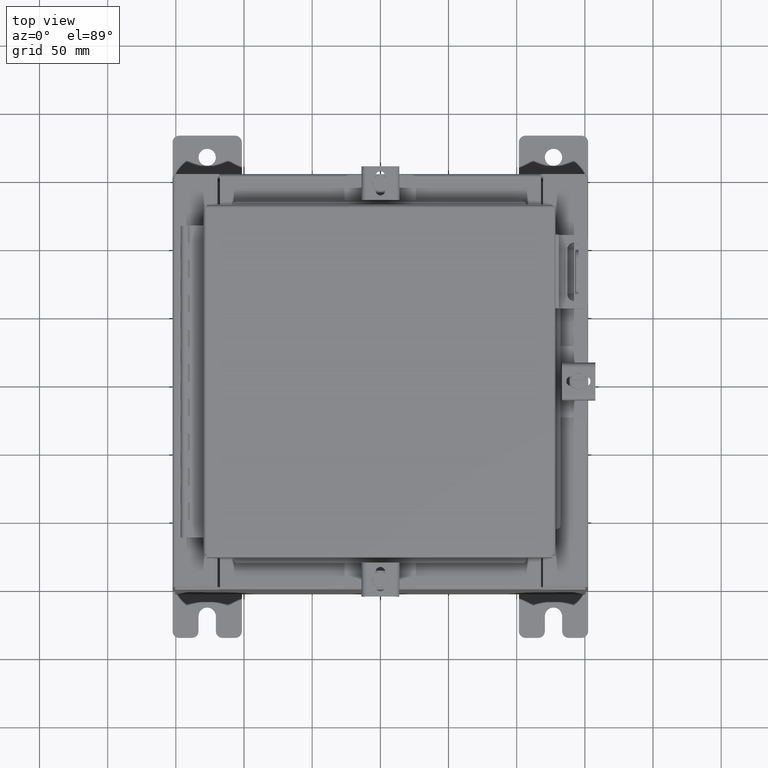
[diagram: clean part render]
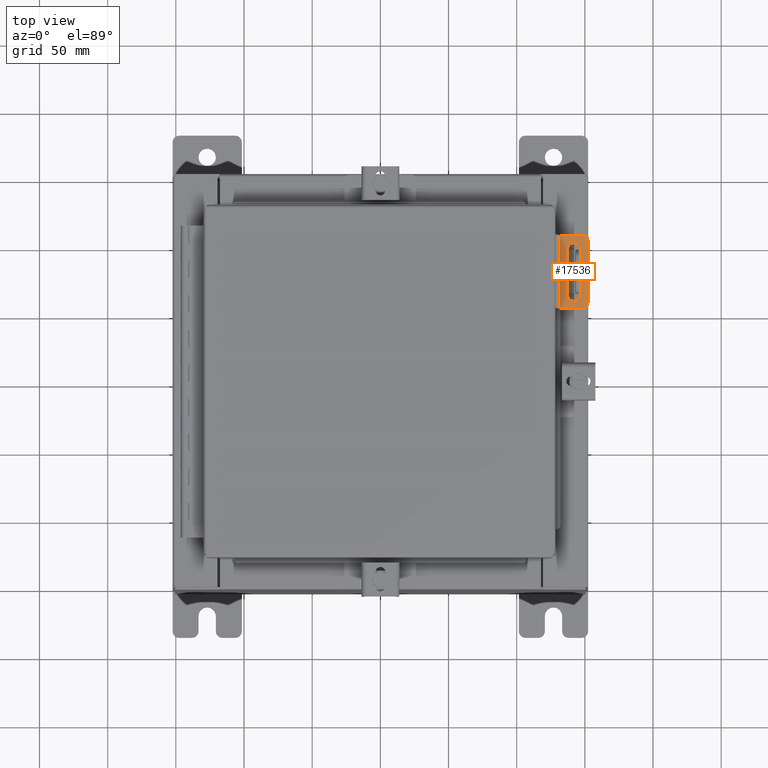
[diagram: same view with one face highlighted and labeled with its STEP entity id]
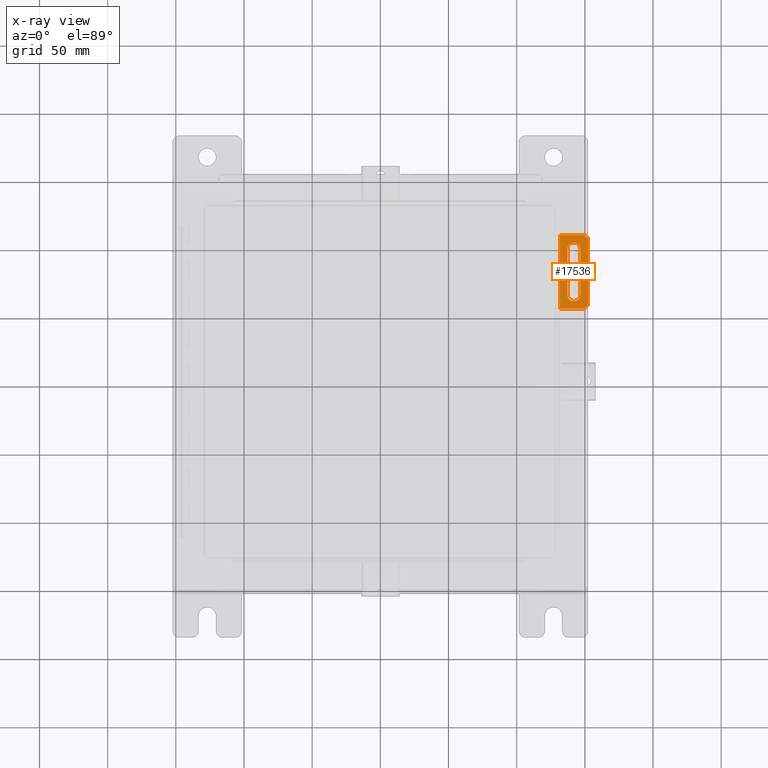
[diagram: x-ray of the same camera — body ghosted, the highlighted face saturated]
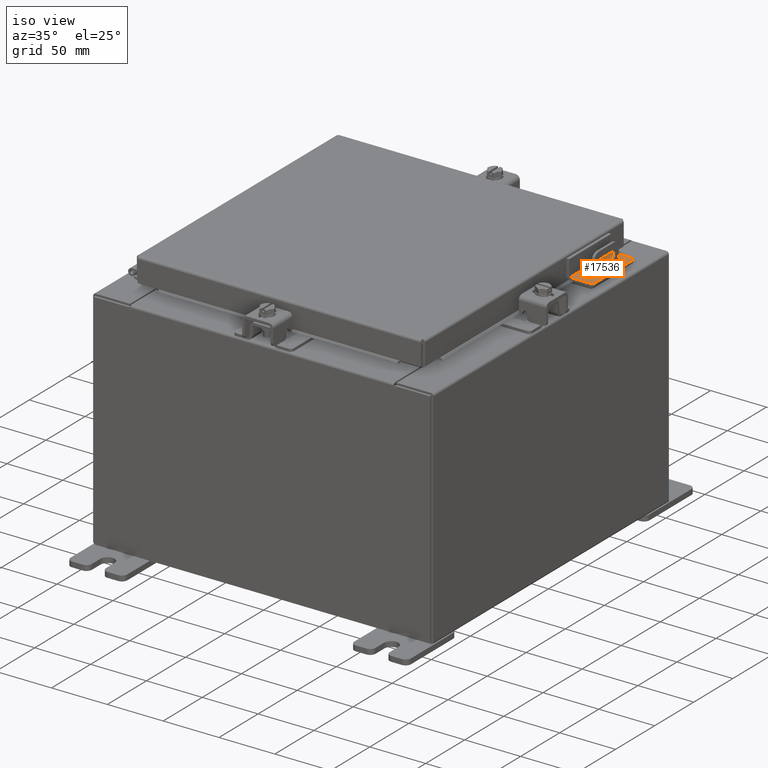
[diagram: same view with one face highlighted and labeled with its STEP entity id]
A machine part, top view. The second image highlights one B-rep face of the part: STEP entity #17536.
The next image is the same camera in x-ray: the body ghosted, the highlighted face saturated — about 0% of this face is hidden behind the body in this view.
A second angle (iso view) of the same face is appended — the face is thin or edge-on in the first view.
In plain terms, the highlighted planar face has unit normal (-0, -0, -1).
Its self-contained STEP definition (entity closure, byte-faithful):
#57 = VERTEX_POINT ( 'NONE', #5520 ) ;
#209 = ORIENTED_EDGE ( 'NONE', *, *, #7483, .F. ) ;
#282 = ORIENTED_EDGE ( 'NONE', *, *, #5899, .T. ) ;
#290 = EDGE_CURVE ( 'NONE', #20202, #17165, #17684, .T. ) ;
#915 = FACE_OUTER_BOUND ( 'NONE', #3566, .T. ) ;
#926 = CARTESIAN_POINT ( 'NONE',  ( 0.1299999999999999800, -0.3000000000000006000, 1.059999999999999600 ) ) ;
#1483 = VERTEX_POINT ( 'NONE', #5279 ) ;
#1491 = CARTESIAN_POINT ( 'NONE',  ( 0.9399999999999992800, -0.3000000000000072100, 1.059999999999999400 ) ) ;
#1735 = VECTOR ( 'NONE', #5477, 39.37007874015748100 ) ;
#1790 = ORIENTED_EDGE ( 'NONE', *, *, #10603, .T. ) ;
#2070 = VERTEX_POINT ( 'NONE', #3820 ) ;
#2374 = ORIENTED_EDGE ( 'NONE', *, *, #20999, .T. ) ;
#2439 = DIRECTION ( 'NONE',  ( 1.000000000000000000, -3.502369222646493300E-015, 0.0000000000000000000 ) ) ;
#3192 = VECTOR ( 'NONE', #19833, 39.37007874015748100 ) ;
#3498 = CIRCLE ( 'NONE', #10697, 0.1559999999999999200 ) ;
#3566 = EDGE_LOOP ( 'NONE', ( #4548, #282, #4984, #1790, #209, #2374 ) ) ;
#3820 = CARTESIAN_POINT ( 'NONE',  ( 0.7210000000000003100, -0.3000000000000028200, 0.6594999999999982000 ) ) ;
#3826 = CARTESIAN_POINT ( 'NONE',  ( 0.5335000000000002000, -0.3000000000000017100, 0.6594999999999982000 ) ) ;
#3837 = VERTEX_POINT ( 'NONE', #9247 ) ;
#3859 = EDGE_CURVE ( 'NONE', #6670, #2070, #21795, .T. ) ;
#4188 = CARTESIAN_POINT ( 'NONE',  ( 0.7840000000000001400, -0.3000000000000061000, 0.9039999999999996900 ) ) ;
#4529 = CARTESIAN_POINT ( 'NONE',  ( 0.9399999999999992800, -0.3000000000000072100, -1.060000000000002300 ) ) ;
#4548 = ORIENTED_EDGE ( 'NONE', *, *, #290, .T. ) ;
#4629 = VECTOR ( 'NONE', #8457, 39.37007874015748100 ) ;
#4984 = ORIENTED_EDGE ( 'NONE', *, *, #20676, .T. ) ;
#5145 = EDGE_CURVE ( 'NONE', #3837, #6670, #13563, .T. ) ;
#5154 = CARTESIAN_POINT ( 'NONE',  ( 0.3460000000000000900, -0.3000000000000006000, -0.6535000000000016400 ) ) ;
#5279 = CARTESIAN_POINT ( 'NONE',  ( 0.1299999999999988900, -0.3000000000000006000, -1.060000000000000300 ) ) ;
#5467 = ORIENTED_EDGE ( 'NONE', *, *, #5683, .F. ) ;
#5477 = DIRECTION ( 'NONE',  ( -1.000000000000000000, 3.496114991891765600E-015, -2.813258173039207200E-030 ) ) ;
#5504 = DIRECTION ( 'NONE',  ( 2.812764345841815300E-030, -3.155443620884047200E-030, 1.000000000000000000 ) ) ;
#5520 = CARTESIAN_POINT ( 'NONE',  ( 0.7839999999999979200, -0.3000000000000028200, -1.060000000000002300 ) ) ;
#5683 = EDGE_CURVE ( 'NONE', #2070, #10294, #14555, .T. ) ;
#5899 = EDGE_CURVE ( 'NONE', #17165, #57, #3498, .T. ) ;
#6085 = CIRCLE ( 'NONE', #7142, 0.1874999999999999700 ) ;
#6128 = AXIS2_PLACEMENT_3D ( 'NONE', #4188, #15167, #2439 ) ;
#6134 = DIRECTION ( 'NONE',  ( 1.000000000000000000, -3.502369222646493300E-015, 0.0000000000000000000 ) ) ;
#6219 = DIRECTION ( 'NONE',  ( -1.000000000000000000, 3.460340791974733800E-015, 0.0000000000000000000 ) ) ;
#6670 = VERTEX_POINT ( 'NONE', #11022 ) ;
#6820 = AXIS2_PLACEMENT_3D ( 'NONE', #3826, #21727, #20802 ) ;
#7142 = AXIS2_PLACEMENT_3D ( 'NONE', #17130, #11674, #6219 ) ;
#7483 = EDGE_CURVE ( 'NONE', #12382, #17548, #8770, .T. ) ;
#8457 = DIRECTION ( 'NONE',  ( -1.000000000000000000, 3.496114991891765600E-015, -2.813258173039207200E-030 ) ) ;
#8770 = LINE ( 'NONE', #10892, #4629 ) ;
#8999 = CARTESIAN_POINT ( 'NONE',  ( 0.7840000000000001400, -0.3000000000000028200, 1.059999999999999400 ) ) ;
#9246 = CIRCLE ( 'NONE', #6128, 0.1559999999999999200 ) ;
#9247 = CARTESIAN_POINT ( 'NONE',  ( 0.3460000000000000900, -0.3000000000000006000, -0.6535000000000016400 ) ) ;
#10294 = VERTEX_POINT ( 'NONE', #23055 ) ;
#10407 = ORIENTED_EDGE ( 'NONE', *, *, #18706, .F. ) ;
#10512 = CARTESIAN_POINT ( 'NONE',  ( 0.1299999999999999800, -0.3000000000000006000, 1.059999999999999600 ) ) ;
#10603 = EDGE_CURVE ( 'NONE', #1483, #17548, #12475, .T. ) ;
#10667 = DIRECTION ( 'NONE',  ( -3.496114991891766800E-015, -1.000000000000000000, 3.155443620884047200E-030 ) ) ;
#10697 = AXIS2_PLACEMENT_3D ( 'NONE', #11234, #17729, #6134 ) ;
#10892 = CARTESIAN_POINT ( 'NONE',  ( 0.9399999999999992800, -0.3000000000000072100, 1.059999999999999400 ) ) ;
#11022 = CARTESIAN_POINT ( 'NONE',  ( 0.3460000000000000900, -0.3000000000000006000, 0.6594999999999982000 ) ) ;
#11234 = CARTESIAN_POINT ( 'NONE',  ( 0.7839999999999979200, -0.3000000000000028200, -0.9040000000000021400 ) ) ;
#11269 = ORIENTED_EDGE ( 'NONE', *, *, #5145, .F. ) ;
#11674 = DIRECTION ( 'NONE',  ( 3.496114991891767200E-015, 1.000000000000000000, -3.155443620884047200E-030 ) ) ;
#11940 = AXIS2_PLACEMENT_3D ( 'NONE', #21268, #10667, #13778 ) ;
#12382 = VERTEX_POINT ( 'NONE', #8999 ) ;
#12467 = PLANE ( 'NONE',  #11940 ) ;
#12475 = LINE ( 'NONE', #926, #14236 ) ;
#12723 = CARTESIAN_POINT ( 'NONE',  ( 0.7210000000000003100, -0.3000000000000028200, 0.6594999999999982000 ) ) ;
#12950 = CARTESIAN_POINT ( 'NONE',  ( 0.9399999999999992800, -0.3000000000000039300, -0.9040000000000021400 ) ) ;
#13179 = ORIENTED_EDGE ( 'NONE', *, *, #3859, .F. ) ;
#13563 = LINE ( 'NONE', #5154, #18278 ) ;
#13679 = DIRECTION ( 'NONE',  ( 5.201538449475264600E-017, -3.155443620884047200E-030, 1.000000000000000000 ) ) ;
#13778 = DIRECTION ( 'NONE',  ( 1.000000000000000000, -3.496114991891766800E-015, 2.813258173039201200E-030 ) ) ;
#14204 = LINE ( 'NONE', #4529, #1735 ) ;
#14236 = VECTOR ( 'NONE', #5504, 39.37007874015748100 ) ;
#14555 = LINE ( 'NONE', #12723, #3192 ) ;
#15167 = DIRECTION ( 'NONE',  ( 3.496114991891767200E-015, 1.000000000000000000, -3.155443620884047200E-030 ) ) ;
#16440 = FACE_BOUND ( 'NONE', #21112, .T. ) ;
#16452 = CARTESIAN_POINT ( 'NONE',  ( 0.9399999999999992800, -0.3000000000000028200, 0.9039999999999996900 ) ) ;
#17130 = CARTESIAN_POINT ( 'NONE',  ( 0.5335000000000002000, -0.3000000000000017100, -0.6535000000000016400 ) ) ;
#17165 = VERTEX_POINT ( 'NONE', #12950 ) ;
#17536 = ADVANCED_FACE ( 'NONE', ( #16440, #915 ), #12467, .F. ) ;
#17548 = VERTEX_POINT ( 'NONE', #10512 ) ;
#17684 = LINE ( 'NONE', #1491, #19644 ) ;
#17729 = DIRECTION ( 'NONE',  ( 3.496114991891767200E-015, 1.000000000000000000, -3.155443620884047200E-030 ) ) ;
#18278 = VECTOR ( 'NONE', #13679, 39.37007874015748100 ) ;
#18706 = EDGE_CURVE ( 'NONE', #10294, #3837, #6085, .T. ) ;
#18800 = DIRECTION ( 'NONE',  ( -2.812764345841815300E-030, 3.155443620884047200E-030, -1.000000000000000000 ) ) ;
#19644 = VECTOR ( 'NONE', #18800, 39.37007874015748100 ) ;
#19833 = DIRECTION ( 'NONE',  ( -1.040307689895025200E-016, 3.155443620884047200E-030, -1.000000000000000000 ) ) ;
#20202 = VERTEX_POINT ( 'NONE', #16452 ) ;
#20676 = EDGE_CURVE ( 'NONE', #57, #1483, #14204, .T. ) ;
#20802 = DIRECTION ( 'NONE',  ( -1.000000000000000000, 3.460340791974733800E-015, 0.0000000000000000000 ) ) ;
#20999 = EDGE_CURVE ( 'NONE', #12382, #20202, #9246, .T. ) ;
#21112 = EDGE_LOOP ( 'NONE', ( #5467, #13179, #11269, #10407 ) ) ;
#21268 = CARTESIAN_POINT ( 'NONE',  ( 0.9399999999999992800, -0.3000000000000072100, 1.059999999999999400 ) ) ;
#21727 = DIRECTION ( 'NONE',  ( 3.496114991891767200E-015, 1.000000000000000000, -3.155443620884047200E-030 ) ) ;
#21795 = CIRCLE ( 'NONE', #6820, 0.1874999999999999700 ) ;
#23055 = CARTESIAN_POINT ( 'NONE',  ( 0.7209999999999980900, -0.3000000000000028200, -0.6535000000000016400 ) ) ;